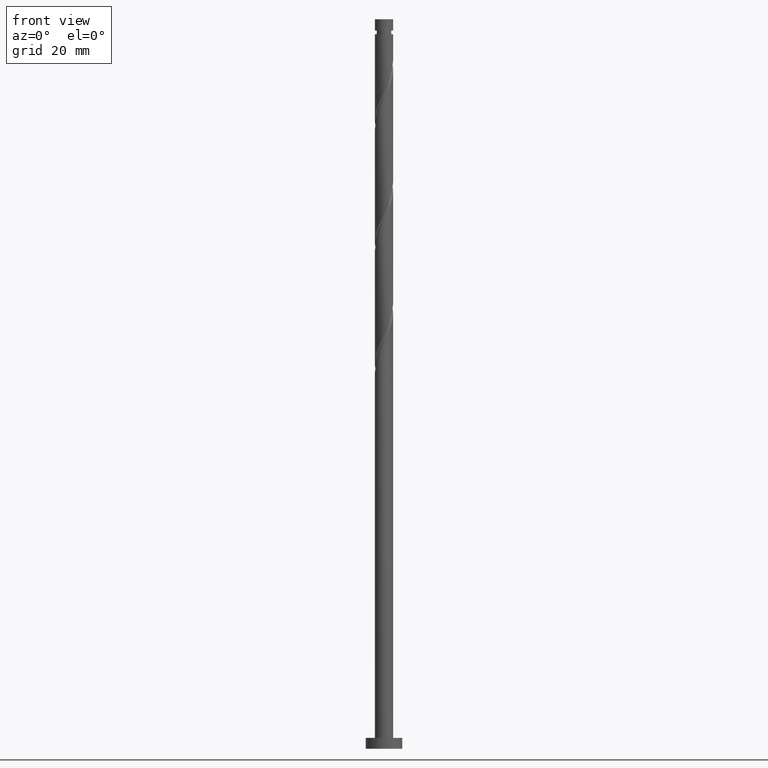
[diagram: clean part render]
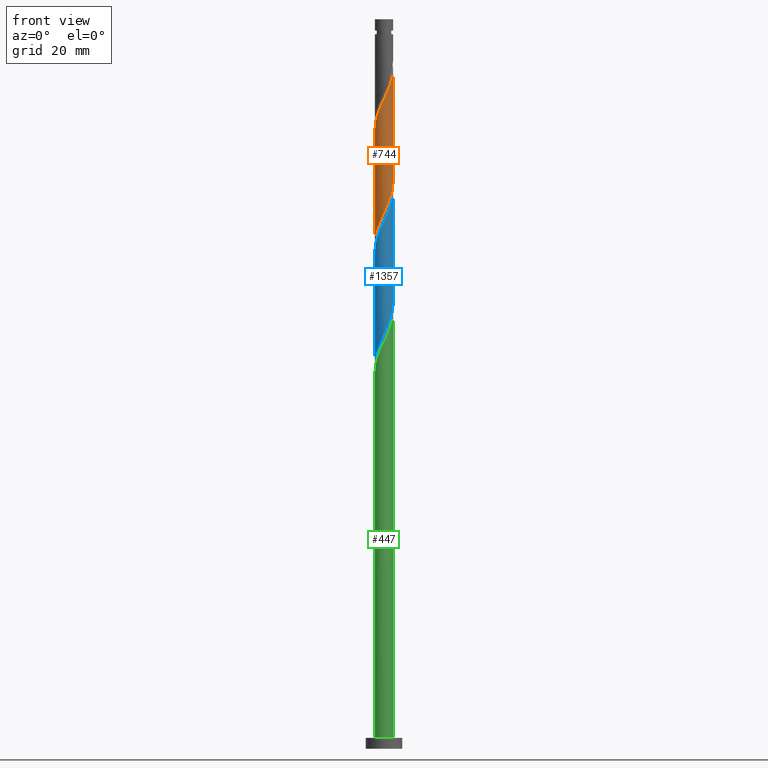
[diagram: same view with three faces highlighted in distinct colors, each labeled with its STEP entity id]
A machine part, front view with three faces highlighted in distinct colors.
Their STEP definitions:

[orange] entity #744 — the highlighted cylindrical surface (edge-blend (fillet) strip) has radius 2.5 mm, axis along (-0, -0, -1).
#23 = CARTESIAN_POINT ( 'NONE',  ( -2.500000000000000444, 3.342170823149074243E-15, 138.6140895499097212 ) ) ;
#48 = CARTESIAN_POINT ( 'NONE',  ( 2.384503709418414275, -0.8200423376424329502, 153.5227451169219250 ) ) ;
#84 = CARTESIAN_POINT ( 'NONE',  ( 2.495279123588690418, -0.1535646293339500701, 186.1616340058108392 ) ) ;
#87 = EDGE_CURVE ( 'NONE', #1597, #968, #1602, .T. ) ;
#90 = CARTESIAN_POINT ( 'NONE',  ( 1.409255045694377317, -2.091011141037082410, 181.3005228946997249 ) ) ;
#152 = CARTESIAN_POINT ( 'NONE',  ( -1.114648691668404634, -2.237757425227747010, 144.4949673391440967 ) ) ;
#176 = CARTESIAN_POINT ( 'NONE',  ( -2.370509098548530424, -0.7941578015096462106, 140.3283006724774964 ) ) ;
#185 = CARTESIAN_POINT ( 'NONE',  ( 1.655019618953359251, -1.902429351286329728, 150.7449673391440967 ) ) ;
#207 = CARTESIAN_POINT ( 'NONE',  ( 0.1749450994641902069, -2.515496290581588301, 178.5227451169218966 ) ) ;
#231 = CARTESIAN_POINT ( 'NONE',  ( 0.000000000000000000, 0.000000000000000000, 200.0000000000000000 ) ) ;
#285 = CARTESIAN_POINT ( 'NONE',  ( 1.873015379995218721, -1.655842198490353967, 151.4394117835885822 ) ) ;
#295 = ORIENTED_EDGE ( 'NONE', *, *, #697, .T. ) ;
#302 = CARTESIAN_POINT ( 'NONE',  ( 1.106241244887206321, -2.265956240501270980, 149.3560784502552394 ) ) ;
#313 = EDGE_CURVE ( 'NONE', #1201, #1626, #1481, .T. ) ;
#336 = CARTESIAN_POINT ( 'NONE',  ( 1.114648691668403968, -2.237757425227750119, 180.6060784502552394 ) ) ;
#343 = CARTESIAN_POINT ( 'NONE',  ( -2.091011141037081966, -1.409255045694377984, 172.9671895613663537 ) ) ;
#392 = LINE ( 'NONE', #901, #1542 ) ;
#403 = ORIENTED_EDGE ( 'NONE', *, *, #932, .F. ) ;
#442 = CARTESIAN_POINT ( 'NONE',  ( 0.1535646293339464619, -2.495279123588686865, 147.2727451169219250 ) ) ;
#465 = CARTESIAN_POINT ( 'NONE',  ( -1.106241244887209874, -2.265956240501273200, 175.7449673391441252 ) ) ;
#478 = CARTESIAN_POINT ( 'NONE',  ( -1.380630431920285117, -2.084192795893801797, 175.0505228946996397 ) ) ;
#529 = CARTESIAN_POINT ( 'NONE',  ( -0.4974937185533114814, -2.449999999999999734, 145.8838562280330109 ) ) ;
#539 = CARTESIAN_POINT ( 'NONE',  ( -2.265956240501270980, -1.106241244887206321, 141.0227451169218966 ) ) ;
#555 = CARTESIAN_POINT ( 'NONE',  ( 2.500000000000003109, -2.093529822106789721E-16, 186.4869562394896718 ) ) ;
#567 = CARTESIAN_POINT ( 'NONE',  ( -2.084192795893799133, -1.380630431920282675, 141.7171895613663537 ) ) ;
#595 = CARTESIAN_POINT ( 'NONE',  ( 2.500000000000004441, -0.07685487914416042066, 186.3237925514615654 ) ) ;
#601 = CARTESIAN_POINT ( 'NONE',  ( 2.370509098548532645, -0.7941578015096493193, 184.7727451169218682 ) ) ;
#672 = CARTESIAN_POINT ( 'NONE',  ( -1.655842198490353967, -1.873015379995218721, 143.1060784502552110 ) ) ;
#697 = EDGE_CURVE ( 'NONE', #1597, #1626, #392, .T. ) ;
#700 = CARTESIAN_POINT ( 'NONE',  ( 2.500000000000000000, 3.061616997868383141E-16, 200.0000000000000000 ) ) ;
#710 = CARTESIAN_POINT ( 'NONE',  ( -0.1749450994641920942, -2.515496290581585193, 146.5783006724775248 ) ) ;
#734 = CARTESIAN_POINT ( 'NONE',  ( 2.084192795893800909, -1.380630431920286449, 183.3838562280330393 ) ) ;
#741 = CARTESIAN_POINT ( 'NONE',  ( -0.7941578015096490972, -2.370509098548532645, 176.4394117835885822 ) ) ;
#744 = ADVANCED_FACE ( 'NONE', ( #1326 ), #1453, .T. ) ;
#776 = ORIENTED_EDGE ( 'NONE', *, *, #313, .F. ) ;
#785 = DIRECTION ( 'NONE',  ( -0.000000000000000000, -0.000000000000000000, -1.000000000000000000 ) ) ;
#820 = CARTESIAN_POINT ( 'NONE',  ( -1.409255045694377539, -2.091011141037077969, 143.8005228946996681 ) ) ;
#830 = CARTESIAN_POINT ( 'NONE',  ( 0.7941578015096460996, -2.370509098548530869, 148.6616340058108108 ) ) ;
#840 = CARTESIAN_POINT ( 'NONE',  ( -0.8200423376424320621, -2.384503709418415163, 145.1894117835886107 ) ) ;
#875 = CARTESIAN_POINT ( 'NONE',  ( -2.384503709418420048, -0.8200423376424313959, 171.5783006724774680 ) ) ;
#901 = CARTESIAN_POINT ( 'NONE',  ( -2.500000000000000000, 0.000000000000000000, 200.0000000000000000 ) ) ;
#932 = EDGE_CURVE ( 'NONE', #968, #1201, #1074, .T. ) ;
#963 = DIRECTION ( 'NONE',  ( -0.000000000000000000, -0.000000000000000000, -1.000000000000000000 ) ) ;
#968 = VERTEX_POINT ( 'NONE', #555 ) ;
#976 = CARTESIAN_POINT ( 'NONE',  ( 2.500000000000000444, 2.938418643171334019E-15, 155.2807562165764637 ) ) ;
#1009 = CARTESIAN_POINT ( 'NONE',  ( 2.265956240501273200, -1.106241244887209874, 184.0783006724774680 ) ) ;
#1015 = CARTESIAN_POINT ( 'NONE',  ( -1.655019618953362803, -1.902429351286330839, 174.3560784502552394 ) ) ;
#1020 = CARTESIAN_POINT ( 'NONE',  ( -0.4820743581320877102, -2.475061956595794754, 177.1338562280330677 ) ) ;
#1043 = EDGE_LOOP ( 'NONE', ( #403, #1199, #295, #776 ) ) ;
#1074 = LINE ( 'NONE', #700, #1131 ) ;
#1099 = CARTESIAN_POINT ( 'NONE',  ( -2.500000000000000444, 3.342170823149074243E-15, 138.6140895499097496 ) ) ;
#1113 = CARTESIAN_POINT ( 'NONE',  ( 2.449999999999999734, -0.4974937185533115924, 154.2171895613663821 ) ) ;
#1131 = VECTOR ( 'NONE', #963, 1000.000000000000000 ) ;
#1142 = CARTESIAN_POINT ( 'NONE',  ( -2.500000000000003109, -0.2512594538148040235, 170.3537159420122009 ) ) ;
#1149 = CARTESIAN_POINT ( 'NONE',  ( 0.8200423376424312849, -2.384503709418420048, 179.9116340058108108 ) ) ;
#1155 = CARTESIAN_POINT ( 'NONE',  ( 2.475061956595793866, -0.4820743581320889870, 185.4671895613664105 ) ) ;
#1156 = CARTESIAN_POINT ( 'NONE',  ( 2.500000000000000444, 2.938418643171334019E-15, 155.2807562165764637 ) ) ;
#1199 = ORIENTED_EDGE ( 'NONE', *, *, #87, .F. ) ;
#1201 = VERTEX_POINT ( 'NONE', #1156 ) ;
#1219 = CARTESIAN_POINT ( 'NONE',  ( 1.380630431920282231, -2.084192795893800021, 150.0505228946996965 ) ) ;
#1239 = CARTESIAN_POINT ( 'NONE',  ( 2.091011141037077081, -1.409255045694378206, 152.1338562280330393 ) ) ;
#1247 = AXIS2_PLACEMENT_3D ( 'NONE', #231, #785, #1595 ) ;
#1262 = CARTESIAN_POINT ( 'NONE',  ( -2.500000000000003109, 2.063622253219550189E-15, 169.8202895728229578 ) ) ;
#1288 = CARTESIAN_POINT ( 'NONE',  ( -1.873015379995222052, -1.655842198490354633, 173.6616340058108108 ) ) ;
#1294 = CARTESIAN_POINT ( 'NONE',  ( 0.4974937185533111483, -2.450000000000002842, 179.2171895613664105 ) ) ;
#1326 = FACE_OUTER_BOUND ( 'NONE', #1043, .T. ) ;
#1361 = CARTESIAN_POINT ( 'NONE',  ( 2.237757425227745234, -1.114648691668405522, 152.8283006724774680 ) ) ;
#1373 = CARTESIAN_POINT ( 'NONE',  ( -2.500000000000000444, -0.07685487914417769850, 138.7772532379379129 ) ) ;
#1391 = CARTESIAN_POINT ( 'NONE',  ( -1.902429351286329728, -1.655019618953359473, 142.4116340058108108 ) ) ;
#1423 = CARTESIAN_POINT ( 'NONE',  ( -0.1535646293339487933, -2.495279123588690418, 177.8283006724774680 ) ) ;
#1430 = CARTESIAN_POINT ( 'NONE',  ( 1.655842198490354633, -1.873015379995222496, 181.9949673391440967 ) ) ;
#1453 = CYLINDRICAL_SURFACE ( 'NONE', #1247, 2.500000000000000000 ) ;
#1481 =( BOUNDED_CURVE ( )  B_SPLINE_CURVE ( 2, ( #976, #1529, #1113, #48, #1361, #1239, #285, #185, #1219, #302, #830, #1659, #442, #710, #529, #840, #152, #820, #672, #1391, #567, #539, #176, #1666, #1498, #1373, #23 ),
 .UNSPECIFIED., .F., .F. ) 
 B_SPLINE_CURVE_WITH_KNOTS ( ( 3, 2, 2, 2, 2, 2, 2, 2, 2, 2, 2, 2, 2, 3 ),
 ( 0.5545317669814460171, 0.5625000000000000000, 0.5729166666666666297, 0.5833333333333333703, 0.5937500000000000000, 0.6041666666666666297, 0.6145833333333333703, 0.6250000000000000000, 0.6354166666666666297, 0.6458333333333333703, 0.6562500000000000000, 0.6666666666666666297, 0.6770833333333333703, 0.6795317669814464612 ),
 .UNSPECIFIED. ) 
 CURVE ( )  GEOMETRIC_REPRESENTATION_ITEM ( )  RATIONAL_B_SPLINE_CURVE ( ( 0.9062941362546488300, 0.9031415850403525791, 0.9090909090909282675, 0.9013135103398466352, 0.9090909090909282675, 0.9013135103398466352, 0.9090909090909282675, 0.9013135103398466352, 0.9090909090909282675, 0.9013135103398466352, 0.9090909090909282675, 0.9013135103398466352, 0.9090909090909282675, 0.9013135103398466352, 0.9090909090909282675, 0.9013135103398466352, 0.9090909090909282675, 0.9013135103398466352, 0.9090909090909282675, 0.9013135103398466352, 0.9090909090909282675, 0.9013135103398466352, 0.9090909090909282675, 0.9013135103398466352, 0.9090909090909282675, 0.9072628343904218795, 0.9062941362546483859 ) ) 
 REPRESENTATION_ITEM ( '' )  );
#1498 = CARTESIAN_POINT ( 'NONE',  ( -2.495279123588686865, -0.1535646293339473223, 138.9394117835885538 ) ) ;
#1529 = CARTESIAN_POINT ( 'NONE',  ( 2.500000000000001776, -0.2512594538147955858, 154.7473298473871921 ) ) ;
#1542 = VECTOR ( 'NONE', #1606, 1000.000000000000000 ) ;
#1573 = CARTESIAN_POINT ( 'NONE',  ( -2.450000000000002842, -0.4974937185533113704, 170.8838562280330109 ) ) ;
#1595 = DIRECTION ( 'NONE',  ( -1.000000000000000000, 0.000000000000000000, 0.000000000000000000 ) ) ;
#1597 = VERTEX_POINT ( 'NONE', #1633 ) ;
#1602 =( BOUNDED_CURVE ( )  B_SPLINE_CURVE ( 2, ( #1262, #1142, #1573, #875, #1707, #343, #1288, #1015, #478, #465, #741, #1020, #1423, #207, #1294, #1149, #336, #90, #1430, #1694, #734, #1009, #601, #1155, #84, #595, #1700 ),
 .UNSPECIFIED., .F., .F. ) 
 B_SPLINE_CURVE_WITH_KNOTS ( ( 3, 2, 2, 2, 2, 2, 2, 2, 2, 2, 2, 2, 2, 3 ),
 ( 0.5545317669814462391, 0.5625000000000000000, 0.5729166666666667407, 0.5833333333333332593, 0.5937500000000000000, 0.6041666666666667407, 0.6145833333333332593, 0.6250000000000000000, 0.6354166666666667407, 0.6458333333333332593, 0.6562500000000000000, 0.6666666666666667407, 0.6770833333333332593, 0.6795317669814470163 ),
 .UNSPECIFIED. ) 
 CURVE ( )  GEOMETRIC_REPRESENTATION_ITEM ( )  RATIONAL_B_SPLINE_CURVE ( ( 0.9062941362546541590, 0.9031415850403583523, 0.9090909090909338186, 0.9013135103398520753, 0.9090909090909338186, 0.9013135103398520753, 0.9090909090909338186, 0.9013135103398520753, 0.9090909090909338186, 0.9013135103398520753, 0.9090909090909338186, 0.9013135103398520753, 0.9090909090909338186, 0.9013135103398520753, 0.9090909090909338186, 0.9013135103398520753, 0.9090909090909338186, 0.9013135103398520753, 0.9090909090909338186, 0.9013135103398520753, 0.9090909090909338186, 0.9013135103398520753, 0.9090909090909338186, 0.9013135103398520753, 0.9090909090909338186, 0.9072628343904269865, 0.9062941362546534929 ) ) 
 REPRESENTATION_ITEM ( '' )  );
#1606 = DIRECTION ( 'NONE',  ( -0.000000000000000000, -0.000000000000000000, -1.000000000000000000 ) ) ;
#1626 = VERTEX_POINT ( 'NONE', #1099 ) ;
#1633 = CARTESIAN_POINT ( 'NONE',  ( -2.500000000000003109, 2.063622253219550189E-15, 169.8202895728229578 ) ) ;
#1659 = CARTESIAN_POINT ( 'NONE',  ( 0.4820743581320852122, -2.475061956595791646, 147.9671895613663821 ) ) ;
#1666 = CARTESIAN_POINT ( 'NONE',  ( -2.475061956595791202, -0.4820743581320859339, 139.6338562280330393 ) ) ;
#1694 = CARTESIAN_POINT ( 'NONE',  ( 1.902429351286330839, -1.655019618953362803, 182.6894117835885822 ) ) ;
#1700 = CARTESIAN_POINT ( 'NONE',  ( 2.500000000000003109, -2.093529822106789721E-16, 186.4869562394896434 ) ) ;
#1707 = CARTESIAN_POINT ( 'NONE',  ( -2.237757425227750119, -1.114648691668405078, 172.2727451169219250 ) ) ;

[blue] entity #1357 — the highlighted cylindrical surface (edge-blend (fillet) strip) has radius 2.5 mm, axis along (-0, -0, -1).
#111 = CARTESIAN_POINT ( 'NONE',  ( 2.091011141037077081, -1.409255045694378206, 118.8005228946996965 ) ) ;
#113 = CARTESIAN_POINT ( 'NONE',  ( 2.084192795893800909, -1.380630431920286449, 150.0505228946996397 ) ) ;
#124 = DIRECTION ( 'NONE',  ( -0.000000000000000000, -0.000000000000000000, -1.000000000000000000 ) ) ;
#143 = CARTESIAN_POINT ( 'NONE',  ( -2.237757425227750119, -1.114648691668405078, 138.9394117835885822 ) ) ;
#182 = EDGE_CURVE ( 'NONE', #924, #661, #1723, .T. ) ;
#222 = CARTESIAN_POINT ( 'NONE',  ( -2.495279123588686865, -0.1535646293339473223, 105.6060784502552679 ) ) ;
#224 = CARTESIAN_POINT ( 'NONE',  ( 2.449999999999999734, -0.4974937185533115924, 120.8838562280330393 ) ) ;
#235 = CARTESIAN_POINT ( 'NONE',  ( -2.500000000000003109, -0.2512594538148030798, 137.0203826086788581 ) ) ;
#241 = CARTESIAN_POINT ( 'NONE',  ( -2.500000000000000444, -0.07685487914417769850, 105.4439199046045843 ) ) ;
#252 = CARTESIAN_POINT ( 'NONE',  ( -1.873015379995222052, -1.655842198490354633, 140.3283006724774964 ) ) ;
#255 = VERTEX_POINT ( 'NONE', #1251 ) ;
#261 = CARTESIAN_POINT ( 'NONE',  ( -2.265956240501270980, -1.106241244887206321, 107.6894117835885964 ) ) ;
#364 = CARTESIAN_POINT ( 'NONE',  ( 2.475061956595793866, -0.4820743581320889870, 152.1338562280330109 ) ) ;
#365 = CYLINDRICAL_SURFACE ( 'NONE', #874, 2.500000000000000000 ) ;
#385 = CARTESIAN_POINT ( 'NONE',  ( -1.380630431920285117, -2.084192795893801797, 141.7171895613663537 ) ) ;
#484 = CARTESIAN_POINT ( 'NONE',  ( -0.4974937185533114814, -2.449999999999999734, 112.5505228946996965 ) ) ;
#491 = CARTESIAN_POINT ( 'NONE',  ( 1.655842198490354633, -1.873015379995222496, 148.6616340058107824 ) ) ;
#497 = CARTESIAN_POINT ( 'NONE',  ( 1.380630431920282231, -2.084192795893800021, 116.7171895613663679 ) ) ;
#510 = ORIENTED_EDGE ( 'NONE', *, *, #1365, .T. ) ;
#517 = CARTESIAN_POINT ( 'NONE',  ( 2.495279123588690418, -0.1535646293339500701, 152.8283006724774680 ) ) ;
#531 = ORIENTED_EDGE ( 'NONE', *, *, #182, .F. ) ;
#559 = CARTESIAN_POINT ( 'NONE',  ( -2.500000000000000444, 1.031811126609781405E-14, 105.2807562165764210 ) ) ;
#566 = EDGE_CURVE ( 'NONE', #255, #1638, #881, .T. ) ;
#607 = CARTESIAN_POINT ( 'NONE',  ( 2.237757425227745234, -1.114648691668405522, 119.4949673391441394 ) ) ;
#616 = CARTESIAN_POINT ( 'NONE',  ( 2.500000000000000888, 2.938418643171334019E-15, 121.9474228832431209 ) ) ;
#620 = CARTESIAN_POINT ( 'NONE',  ( 0.1749450994641902069, -2.515496290581588301, 145.1894117835886391 ) ) ;
#638 = ORIENTED_EDGE ( 'NONE', *, *, #1431, .F. ) ;
#644 = CARTESIAN_POINT ( 'NONE',  ( -1.902429351286329728, -1.655019618953359473, 109.0783006724774964 ) ) ;
#661 = VERTEX_POINT ( 'NONE', #1051 ) ;
#662 = CARTESIAN_POINT ( 'NONE',  ( -0.7941578015096490972, -2.370509098548532645, 143.1060784502552394 ) ) ;
#684 = EDGE_LOOP ( 'NONE', ( #638, #531, #510, #1218 ) ) ;
#754 = CARTESIAN_POINT ( 'NONE',  ( -2.500000000000000444, 1.031811126609781405E-14, 105.2807562165764210 ) ) ;
#759 = LINE ( 'NONE', #1170, #1419 ) ;
#774 = CARTESIAN_POINT ( 'NONE',  ( -1.655842198490353967, -1.873015379995218721, 109.7727451169219535 ) ) ;
#789 = CARTESIAN_POINT ( 'NONE',  ( 1.114648691668403968, -2.237757425227750119, 147.2727451169218966 ) ) ;
#797 = CARTESIAN_POINT ( 'NONE',  ( -2.370509098548530424, -0.7941578015096462106, 106.9949673391441394 ) ) ;
#837 = CARTESIAN_POINT ( 'NONE',  ( -2.500000000000003553, -2.250544558764799277E-15, 136.4869562394896150 ) ) ;
#874 = AXIS2_PLACEMENT_3D ( 'NONE', #1056, #1331, #1479 ) ;
#881 =( BOUNDED_CURVE ( )  B_SPLINE_CURVE ( 2, ( #616, #1176, #224, #1167, #607, #111, #1718, #1728, #497, #1160, #1596, #1711, #902, #1042, #484, #1454, #1301, #1026, #774, #644, #1041, #261, #797, #1032, #222, #241, #754 ),
 .UNSPECIFIED., .F., .T. ) 
 B_SPLINE_CURVE_WITH_KNOTS ( ( 3, 2, 2, 2, 2, 2, 2, 2, 2, 2, 2, 2, 2, 3 ),
 ( 0.8045317669814462391, 0.8125000000000000000, 0.8229166666666666297, 0.8333333333333333703, 0.8437500000000000000, 0.8541666666666666297, 0.8645833333333333703, 0.8750000000000000000, 0.8854166666666666297, 0.8958333333333333703, 0.9062500000000000000, 0.9166666666666666297, 0.9270833333333333703, 0.9295317669814464612 ),
 .UNSPECIFIED. ) 
 CURVE ( )  GEOMETRIC_REPRESENTATION_ITEM ( )  RATIONAL_B_SPLINE_CURVE ( ( 0.9062941362546484969, 0.9031415850403526902, 0.9090909090909282675, 0.9013135103398466352, 0.9090909090909282675, 0.9013135103398466352, 0.9090909090909282675, 0.9013135103398466352, 0.9090909090909282675, 0.9013135103398466352, 0.9090909090909282675, 0.9013135103398466352, 0.9090909090909282675, 0.9013135103398466352, 0.9090909090909282675, 0.9013135103398466352, 0.9090909090909282675, 0.9013135103398466352, 0.9090909090909282675, 0.9013135103398466352, 0.9090909090909282675, 0.9013135103398466352, 0.9090909090909282675, 0.9013135103398466352, 0.9090909090909282675, 0.9072628343904218795, 0.9062941362546483859 ) ) 
 REPRESENTATION_ITEM ( '' )  );
#897 = FACE_OUTER_BOUND ( 'NONE', #684, .T. ) ;
#902 = CARTESIAN_POINT ( 'NONE',  ( 0.1535646293339464619, -2.495279123588686865, 113.9394117835885680 ) ) ;
#918 = CARTESIAN_POINT ( 'NONE',  ( -0.1535646293339487933, -2.495279123588690418, 144.4949673391441252 ) ) ;
#921 = DIRECTION ( 'NONE',  ( -0.000000000000000000, -0.000000000000000000, -1.000000000000000000 ) ) ;
#924 = VERTEX_POINT ( 'NONE', #837 ) ;
#931 = CARTESIAN_POINT ( 'NONE',  ( -1.106241244887209874, -2.265956240501273200, 142.4116340058108676 ) ) ;
#1014 = VECTOR ( 'NONE', #921, 1000.000000000000000 ) ;
#1026 = CARTESIAN_POINT ( 'NONE',  ( -1.409255045694377539, -2.091011141037077969, 110.4671895613663821 ) ) ;
#1027 = CARTESIAN_POINT ( 'NONE',  ( -0.4820743581320877102, -2.475061956595794754, 143.8005228946996965 ) ) ;
#1032 = CARTESIAN_POINT ( 'NONE',  ( -2.475061956595791202, -0.4820743581320859339, 106.3005228946997107 ) ) ;
#1035 = CARTESIAN_POINT ( 'NONE',  ( 2.500000000000003553, 6.355358388538470584E-16, 153.1536229061563006 ) ) ;
#1041 = CARTESIAN_POINT ( 'NONE',  ( -2.084192795893799133, -1.380630431920282675, 108.3838562280330393 ) ) ;
#1042 = CARTESIAN_POINT ( 'NONE',  ( -0.1749450994641920942, -2.515496290581585193, 113.2449673391441536 ) ) ;
#1044 = CARTESIAN_POINT ( 'NONE',  ( 2.370509098548532645, -0.7941578015096493193, 151.4394117835886107 ) ) ;
#1051 = CARTESIAN_POINT ( 'NONE',  ( 2.500000000000003553, 6.355358388538470584E-16, 153.1536229061563006 ) ) ;
#1054 = CARTESIAN_POINT ( 'NONE',  ( -2.500000000000003553, -2.250544558764799277E-15, 136.4869562394896150 ) ) ;
#1056 = CARTESIAN_POINT ( 'NONE',  ( 0.000000000000000000, 0.000000000000000000, 200.0000000000000000 ) ) ;
#1066 = CARTESIAN_POINT ( 'NONE',  ( 1.409255045694377317, -2.091011141037082410, 147.9671895613663537 ) ) ;
#1160 = CARTESIAN_POINT ( 'NONE',  ( 1.106241244887206321, -2.265956240501270980, 116.0227451169219108 ) ) ;
#1167 = CARTESIAN_POINT ( 'NONE',  ( 2.384503709418414275, -0.8200423376424329502, 120.1894117835885964 ) ) ;
#1169 = CARTESIAN_POINT ( 'NONE',  ( 0.8200423376424312849, -2.384503709418420048, 146.5783006724775248 ) ) ;
#1170 = CARTESIAN_POINT ( 'NONE',  ( -2.500000000000000000, 0.000000000000000000, 200.0000000000000000 ) ) ;
#1176 = CARTESIAN_POINT ( 'NONE',  ( 2.500000000000001332, -0.2512594538148025247, 121.4139965140538351 ) ) ;
#1178 = CARTESIAN_POINT ( 'NONE',  ( 2.500000000000003553, -0.07685487914417005184, 152.9904592181281657 ) ) ;
#1190 = CARTESIAN_POINT ( 'NONE',  ( 2.500000000000000000, 3.061616997868383141E-16, 200.0000000000000000 ) ) ;
#1218 = ORIENTED_EDGE ( 'NONE', *, *, #566, .F. ) ;
#1251 = CARTESIAN_POINT ( 'NONE',  ( 2.500000000000000444, 2.938418643171334019E-15, 121.9474228832431209 ) ) ;
#1301 = CARTESIAN_POINT ( 'NONE',  ( -1.114648691668404634, -2.237757425227747010, 111.1616340058108108 ) ) ;
#1321 = CARTESIAN_POINT ( 'NONE',  ( 0.4974937185533111483, -2.450000000000002842, 145.8838562280330109 ) ) ;
#1329 = CARTESIAN_POINT ( 'NONE',  ( -1.655019618953362803, -1.902429351286330839, 141.0227451169218682 ) ) ;
#1331 = DIRECTION ( 'NONE',  ( -0.000000000000000000, -0.000000000000000000, -1.000000000000000000 ) ) ;
#1357 = ADVANCED_FACE ( 'NONE', ( #897 ), #365, .T. ) ;
#1365 = EDGE_CURVE ( 'NONE', #924, #1638, #759, .T. ) ;
#1419 = VECTOR ( 'NONE', #124, 1000.000000000000000 ) ;
#1431 = EDGE_CURVE ( 'NONE', #661, #255, #1448, .T. ) ;
#1448 = LINE ( 'NONE', #1190, #1014 ) ;
#1454 = CARTESIAN_POINT ( 'NONE',  ( -0.8200423376424320621, -2.384503709418415163, 111.8560784502552536 ) ) ;
#1475 = CARTESIAN_POINT ( 'NONE',  ( -2.450000000000002842, -0.4974937185533113704, 137.5505228946996965 ) ) ;
#1479 = DIRECTION ( 'NONE',  ( -1.000000000000000000, 0.000000000000000000, 0.000000000000000000 ) ) ;
#1580 = CARTESIAN_POINT ( 'NONE',  ( -2.384503709418420048, -0.8200423376424313959, 138.2449673391441820 ) ) ;
#1596 = CARTESIAN_POINT ( 'NONE',  ( 0.7941578015096460996, -2.370509098548530869, 115.3283006724774680 ) ) ;
#1608 = CARTESIAN_POINT ( 'NONE',  ( 2.265956240501273200, -1.106241244887209874, 150.7449673391441252 ) ) ;
#1638 = VERTEX_POINT ( 'NONE', #559 ) ;
#1711 = CARTESIAN_POINT ( 'NONE',  ( 0.4820743581320852122, -2.475061956595791646, 114.6338562280330535 ) ) ;
#1718 = CARTESIAN_POINT ( 'NONE',  ( 1.873015379995218721, -1.655842198490353967, 118.1060784502552536 ) ) ;
#1720 = CARTESIAN_POINT ( 'NONE',  ( -2.091011141037081966, -1.409255045694377984, 139.6338562280330393 ) ) ;
#1723 =( BOUNDED_CURVE ( )  B_SPLINE_CURVE ( 2, ( #1054, #235, #1475, #1580, #143, #1720, #252, #1329, #385, #931, #662, #1027, #918, #620, #1321, #1169, #789, #1066, #491, #1751, #113, #1608, #1044, #364, #517, #1178, #1035 ),
 .UNSPECIFIED., .F., .F. ) 
 B_SPLINE_CURVE_WITH_KNOTS ( ( 3, 2, 2, 2, 2, 2, 2, 2, 2, 2, 2, 2, 2, 3 ),
 ( 0.3045317669814462946, 0.3125000000000000000, 0.3229166666666666297, 0.3333333333333333703, 0.3437500000000000000, 0.3541666666666666297, 0.3645833333333333703, 0.3750000000000000000, 0.3854166666666666297, 0.3958333333333333703, 0.4062500000000000000, 0.4166666666666666297, 0.4270833333333333703, 0.4295317669814467942 ),
 .UNSPECIFIED. ) 
 CURVE ( )  GEOMETRIC_REPRESENTATION_ITEM ( )  RATIONAL_B_SPLINE_CURVE ( ( 0.9062941362546541590, 0.9031415850403583523, 0.9090909090909338186, 0.9013135103398520753, 0.9090909090909338186, 0.9013135103398520753, 0.9090909090909338186, 0.9013135103398520753, 0.9090909090909338186, 0.9013135103398520753, 0.9090909090909338186, 0.9013135103398520753, 0.9090909090909338186, 0.9013135103398520753, 0.9090909090909338186, 0.9013135103398520753, 0.9090909090909338186, 0.9013135103398520753, 0.9090909090909338186, 0.9013135103398520753, 0.9090909090909338186, 0.9013135103398520753, 0.9090909090909338186, 0.9013135103398520753, 0.9090909090909338186, 0.9072628343904270976, 0.9062941362546536039 ) ) 
 REPRESENTATION_ITEM ( '' )  );
#1728 = CARTESIAN_POINT ( 'NONE',  ( 1.655019618953359251, -1.902429351286329728, 117.4116340058108250 ) ) ;
#1751 = CARTESIAN_POINT ( 'NONE',  ( 1.902429351286330839, -1.655019618953362803, 149.3560784502552679 ) ) ;

[green] entity #447 — the highlighted cylindrical surface (edge-blend (fillet) strip) has radius 2.5 mm, axis along (-0, -0, -1).
#11 = CARTESIAN_POINT ( 'NONE',  ( -0.1535646293339487933, -2.495279123588690418, 111.1616340058107966 ) ) ;
#24 = VECTOR ( 'NONE', #134, 1000.000000000000000 ) ;
#32 = ORIENTED_EDGE ( 'NONE', *, *, #1293, .F. ) ;
#70 = CYLINDRICAL_SURFACE ( 'NONE', #340, 2.500000000000000000 ) ;
#80 = DIRECTION ( 'NONE',  ( -1.000000000000000000, 0.000000000000000000, 0.000000000000000000 ) ) ;
#105 = CARTESIAN_POINT ( 'NONE',  ( 2.370509098548532645, -0.7941578015096493193, 118.1060784502552394 ) ) ;
#119 = ORIENTED_EDGE ( 'NONE', *, *, #608, .T. ) ;
#120 = AXIS2_PLACEMENT_3D ( 'NONE', #1472, #1737, #370 ) ;
#121 = CARTESIAN_POINT ( 'NONE',  ( -1.106241244887209874, -2.265956240501273200, 109.0783006724775106 ) ) ;
#134 = DIRECTION ( 'NONE',  ( -0.000000000000000000, -0.000000000000000000, -1.000000000000000000 ) ) ;
#151 = ORIENTED_EDGE ( 'NONE', *, *, #1620, .T. ) ;
#225 = CARTESIAN_POINT ( 'NONE',  ( 1.655842198490354633, -1.873015379995222496, 115.3283006724774395 ) ) ;
#243 = CARTESIAN_POINT ( 'NONE',  ( 1.409255045694377317, -2.091011141037082410, 114.6338562280330393 ) ) ;
#254 = EDGE_CURVE ( 'NONE', #821, #550, #748, .T. ) ;
#265 = CARTESIAN_POINT ( 'NONE',  ( -0.7941578015096490972, -2.370509098548532645, 109.7727451169219108 ) ) ;
#340 = AXIS2_PLACEMENT_3D ( 'NONE', #1138, #1691, #80 ) ;
#370 = DIRECTION ( 'NONE',  ( 1.000000000000000000, 0.000000000000000000, 0.000000000000000000 ) ) ;
#373 = CARTESIAN_POINT ( 'NONE',  ( -1.655019618953362803, -1.902429351286330839, 107.6894117835885964 ) ) ;
#447 = ADVANCED_FACE ( 'NONE', ( #731 ), #70, .T. ) ;
#480 = CARTESIAN_POINT ( 'NONE',  ( 2.500000000000000000, 3.061616997868383141E-16, 200.0000000000000000 ) ) ;
#509 = CARTESIAN_POINT ( 'NONE',  ( -2.500000000000001332, -0.2512594538148117951, 103.6870492753455864 ) ) ;
#550 = VERTEX_POINT ( 'NONE', #755 ) ;
#557 = CIRCLE ( 'NONE', #120, 2.500000000000000000 ) ;
#608 = EDGE_CURVE ( 'NONE', #1071, #1221, #557, .T. ) ;
#636 = CARTESIAN_POINT ( 'NONE',  ( 2.475061956595793866, -0.4820743581320889870, 118.8005228946997249 ) ) ;
#649 = CARTESIAN_POINT ( 'NONE',  ( -2.237757425227750119, -1.114648691668405078, 105.6060784502552394 ) ) ;
#731 = FACE_OUTER_BOUND ( 'NONE', #790, .T. ) ;
#748 =( BOUNDED_CURVE ( )  B_SPLINE_CURVE ( 2, ( #1200, #509, #1339, #1730, #649, #896, #1209, #373, #1487, #121, #265, #801, #11, #1446, #1349, #910, #1465, #243, #225, #757, #777, #1311, #105, #636, #1187, #811, #1398 ),
 .UNSPECIFIED., .F., .F. ) 
 B_SPLINE_CURVE_WITH_KNOTS ( ( 3, 2, 2, 2, 2, 2, 2, 2, 2, 2, 2, 2, 2, 3 ),
 ( 0.05453176698144657220, 0.06250000000000000000, 0.07291666666666662966, 0.08333333333333337034, 0.09375000000000000000, 0.1041666666666666297, 0.1145833333333333703, 0.1250000000000000000, 0.1354166666666666297, 0.1458333333333333703, 0.1562500000000000000, 0.1666666666666666297, 0.1770833333333333703, 0.1795317669814466832 ),
 .UNSPECIFIED. ) 
 CURVE ( )  GEOMETRIC_REPRESENTATION_ITEM ( )  RATIONAL_B_SPLINE_CURVE ( ( 0.9062941362546538260, 0.9031415850403584633, 0.9090909090909338186, 0.9013135103398520753, 0.9090909090909338186, 0.9013135103398520753, 0.9090909090909338186, 0.9013135103398520753, 0.9090909090909338186, 0.9013135103398520753, 0.9090909090909338186, 0.9013135103398520753, 0.9090909090909338186, 0.9013135103398520753, 0.9090909090909338186, 0.9013135103398520753, 0.9090909090909338186, 0.9013135103398520753, 0.9090909090909338186, 0.9013135103398520753, 0.9090909090909338186, 0.9013135103398520753, 0.9090909090909338186, 0.9013135103398520753, 0.9090909090909338186, 0.9072628343904272086, 0.9062941362546537150 ) ) 
 REPRESENTATION_ITEM ( '' )  );
#755 = CARTESIAN_POINT ( 'NONE',  ( 2.500000000000003553, 6.355358388538470584E-16, 119.8202895728229862 ) ) ;
#757 = CARTESIAN_POINT ( 'NONE',  ( 1.902429351286330839, -1.655019618953362803, 116.0227451169219250 ) ) ;
#777 = CARTESIAN_POINT ( 'NONE',  ( 2.084192795893800909, -1.380630431920286449, 116.7171895613663679 ) ) ;
#780 = VECTOR ( 'NONE', #1600, 1000.000000000000000 ) ;
#790 = EDGE_LOOP ( 'NONE', ( #32, #1745, #151, #119 ) ) ;
#791 = LINE ( 'NONE', #977, #24 ) ;
#801 = CARTESIAN_POINT ( 'NONE',  ( -0.4820743581320877102, -2.475061956595794754, 110.4671895613663679 ) ) ;
#811 = CARTESIAN_POINT ( 'NONE',  ( 2.500000000000003997, -0.07685487914417356292, 119.6571258847948371 ) ) ;
#821 = VERTEX_POINT ( 'NONE', #1577 ) ;
#896 = CARTESIAN_POINT ( 'NONE',  ( -2.091011141037081966, -1.409255045694377984, 106.3005228946996965 ) ) ;
#910 = CARTESIAN_POINT ( 'NONE',  ( 0.8200423376424312849, -2.384503709418420048, 113.2449673391441394 ) ) ;
#977 = CARTESIAN_POINT ( 'NONE',  ( -2.500000000000000000, 0.000000000000000000, 200.0000000000000000 ) ) ;
#1029 = LINE ( 'NONE', #480, #780 ) ;
#1071 = VERTEX_POINT ( 'NONE', #1505 ) ;
#1138 = CARTESIAN_POINT ( 'NONE',  ( 0.000000000000000000, 0.000000000000000000, 200.0000000000000000 ) ) ;
#1187 = CARTESIAN_POINT ( 'NONE',  ( 2.495279123588690418, -0.1535646293339500701, 119.4949673391441110 ) ) ;
#1200 = CARTESIAN_POINT ( 'NONE',  ( -2.500000000000003553, -2.250544558764799277E-15, 103.1536229061563148 ) ) ;
#1209 = CARTESIAN_POINT ( 'NONE',  ( -1.873015379995222052, -1.655842198490354633, 106.9949673391441394 ) ) ;
#1221 = VERTEX_POINT ( 'NONE', #1438 ) ;
#1293 = EDGE_CURVE ( 'NONE', #550, #1221, #1029, .T. ) ;
#1311 = CARTESIAN_POINT ( 'NONE',  ( 2.265956240501273200, -1.106241244887209874, 117.4116340058108250 ) ) ;
#1339 = CARTESIAN_POINT ( 'NONE',  ( -2.450000000000002842, -0.4974937185533113704, 104.2171895613663537 ) ) ;
#1349 = CARTESIAN_POINT ( 'NONE',  ( 0.4974937185533111483, -2.450000000000002842, 112.5505228946996823 ) ) ;
#1398 = CARTESIAN_POINT ( 'NONE',  ( 2.500000000000003553, 6.355358388538470584E-16, 119.8202895728230004 ) ) ;
#1438 = CARTESIAN_POINT ( 'NONE',  ( 2.500000000000000000, 3.061616997868383141E-16, 3.000000000000000000 ) ) ;
#1446 = CARTESIAN_POINT ( 'NONE',  ( 0.1749450994641902069, -2.515496290581588301, 111.8560784502552536 ) ) ;
#1465 = CARTESIAN_POINT ( 'NONE',  ( 1.114648691668403968, -2.237757425227750119, 113.9394117835885822 ) ) ;
#1472 = CARTESIAN_POINT ( 'NONE',  ( 0.000000000000000000, 0.000000000000000000, 3.000000000000000000 ) ) ;
#1487 = CARTESIAN_POINT ( 'NONE',  ( -1.380630431920285117, -2.084192795893801797, 108.3838562280330251 ) ) ;
#1505 = CARTESIAN_POINT ( 'NONE',  ( -2.500000000000000000, 0.000000000000000000, 3.000000000000000000 ) ) ;
#1577 = CARTESIAN_POINT ( 'NONE',  ( -2.500000000000003553, -2.250544558764799277E-15, 103.1536229061563148 ) ) ;
#1600 = DIRECTION ( 'NONE',  ( -0.000000000000000000, -0.000000000000000000, -1.000000000000000000 ) ) ;
#1620 = EDGE_CURVE ( 'NONE', #821, #1071, #791, .T. ) ;
#1691 = DIRECTION ( 'NONE',  ( -0.000000000000000000, -0.000000000000000000, -1.000000000000000000 ) ) ;
#1730 = CARTESIAN_POINT ( 'NONE',  ( -2.384503709418420048, -0.8200423376424313959, 104.9116340058107681 ) ) ;
#1737 = DIRECTION ( 'NONE',  ( 0.000000000000000000, 0.000000000000000000, 1.000000000000000000 ) ) ;
#1745 = ORIENTED_EDGE ( 'NONE', *, *, #254, .F. ) ;